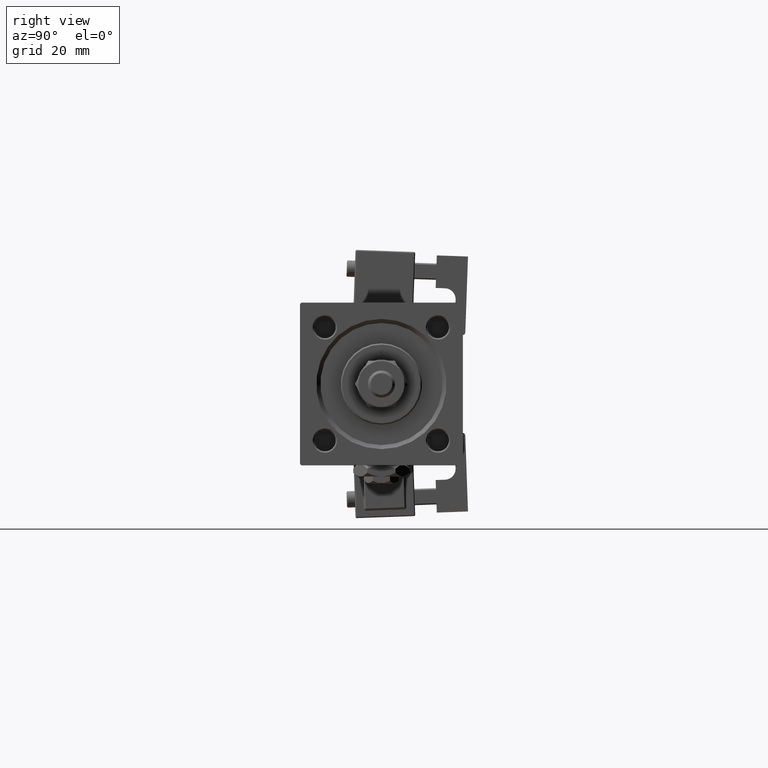
[diagram: clean part render]
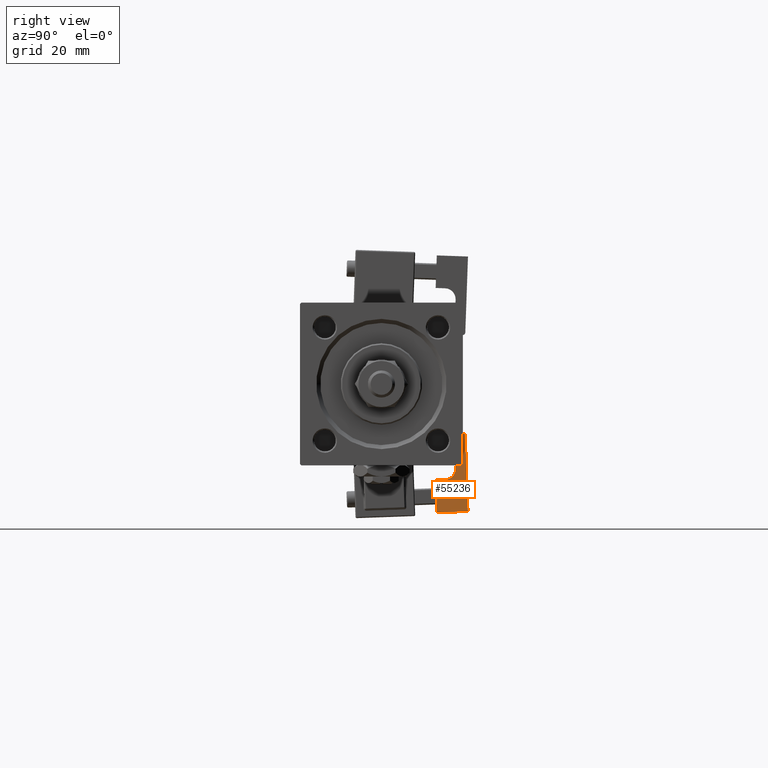
[diagram: same view with one face highlighted and labeled with its STEP entity id]
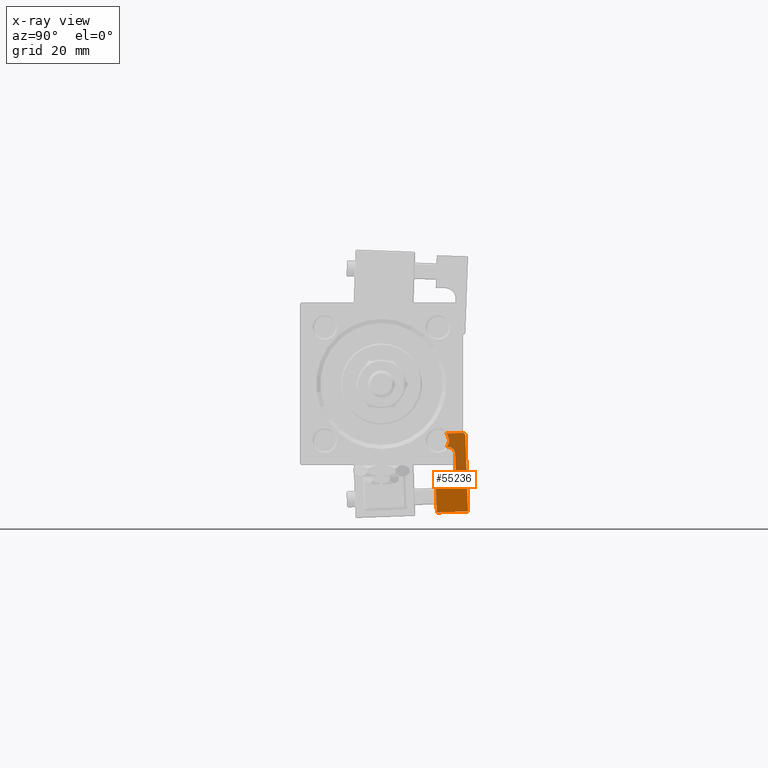
[diagram: x-ray of the same camera — body ghosted, the highlighted face saturated]
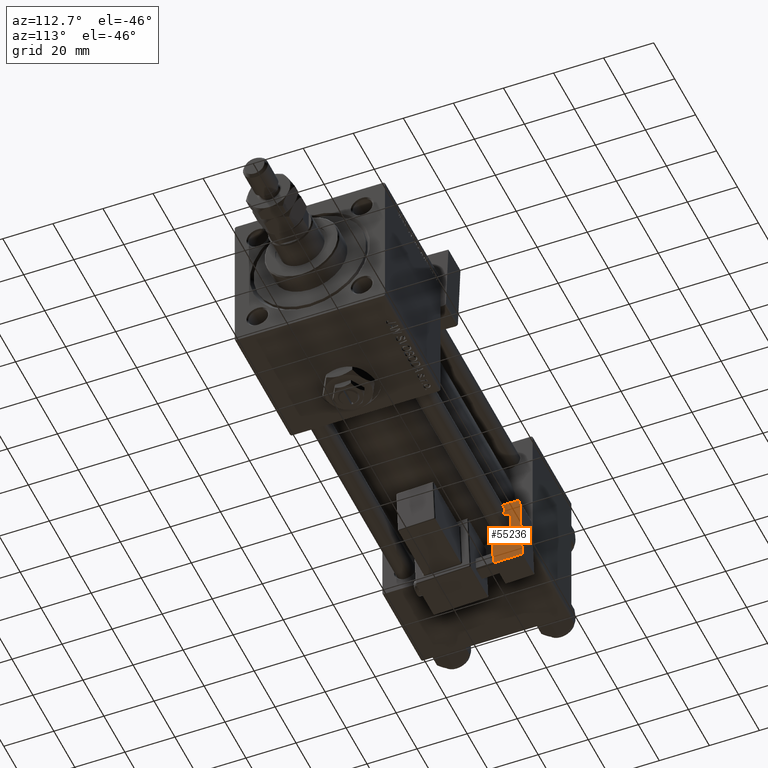
[diagram: same view with one face highlighted and labeled with its STEP entity id]
A machine part, right view. The second image highlights one B-rep face of the part: STEP entity #55236.
The next image is the same camera in x-ray: the body ghosted, the highlighted face saturated — about 22% of this face is hidden behind the body in this view.
A second angle (auxiliary view) of the same face is appended — the face is thin or edge-on in the first view.
In plain terms, the highlighted planar face has unit normal (-1, 0, 0).
Its self-contained STEP definition (entity closure, byte-faithful):
#1076 = EDGE_CURVE ( 'NONE', #6224, #40932, #38210, .T. ) ;
#1113 = ORIENTED_EDGE ( 'NONE', *, *, #31247, .T. ) ;
#1397 = DIRECTION ( 'NONE',  ( -1.000000000000000000, 0.000000000000000000, 0.000000000000000000 ) ) ;
#1871 = ORIENTED_EDGE ( 'NONE', *, *, #45269, .F. ) ;
#2004 = VERTEX_POINT ( 'NONE', #24490 ) ;
#2158 = CARTESIAN_POINT ( 'NONE',  ( 5.750000000000000000, 4.750000000000002665, 29.00000000000000000 ) ) ;
#2245 = CARTESIAN_POINT ( 'NONE',  ( 5.750000000000000000, 5.750000000000001776, 12.00000000000000000 ) ) ;
#2492 = CIRCLE ( 'NONE', #33041, 4.000000000000000000 ) ;
#2689 = CARTESIAN_POINT ( 'NONE',  ( 5.750000000000000000, 5.750000000000001776, 0.000000000000000000 ) ) ;
#4173 = CIRCLE ( 'NONE', #35650, 1.000000000000000888 ) ;
#4631 = DIRECTION ( 'NONE',  ( 0.000000000000000000, -2.602085213965208275E-15, 1.000000000000000000 ) ) ;
#6224 = VERTEX_POINT ( 'NONE', #44213 ) ;
#7683 = ORIENTED_EDGE ( 'NONE', *, *, #54987, .T. ) ;
#8706 = DIRECTION ( 'NONE',  ( 0.000000000000000000, 0.000000000000000000, 1.000000000000000000 ) ) ;
#8924 = VERTEX_POINT ( 'NONE', #12215 ) ;
#9813 = AXIS2_PLACEMENT_3D ( 'NONE', #26977, #27802, #49229 ) ;
#9941 = DIRECTION ( 'NONE',  ( 1.000000000000000000, -0.000000000000000000, -0.000000000000000000 ) ) ;
#10616 = CARTESIAN_POINT ( 'NONE',  ( 5.750000000000000000, -5.750000000000000000, 12.00000000000000000 ) ) ;
#10833 = LINE ( 'NONE', #35656, #27916 ) ;
#11916 = EDGE_LOOP ( 'NONE', ( #23325, #29397, #1113, #48891, #24113, #23767, #53551, #7683, #1871, #34929, #44917 ) ) ;
#12215 = CARTESIAN_POINT ( 'NONE',  ( 5.750000000000000000, -2.250000000000001776, 12.00000000000000000 ) ) ;
#12384 = EDGE_CURVE ( 'NONE', #16716, #36111, #2492, .T. ) ;
#13154 = DIRECTION ( 'NONE',  ( 0.000000000000000000, 0.000000000000000000, 1.000000000000000000 ) ) ;
#15318 = VECTOR ( 'NONE', #39412, 1000.000000000000000 ) ;
#16716 = VERTEX_POINT ( 'NONE', #30881 ) ;
#17217 = CIRCLE ( 'NONE', #30712, 4.000000000000000000 ) ;
#17448 = LINE ( 'NONE', #21671, #15318 ) ;
#19079 = EDGE_CURVE ( 'NONE', #2004, #42389, #34213, .T. ) ;
#19442 = EDGE_CURVE ( 'NONE', #36111, #2004, #10833, .T. ) ;
#21048 = FACE_OUTER_BOUND ( 'NONE', #11916, .T. ) ;
#21671 = CARTESIAN_POINT ( 'NONE',  ( 5.750000000000000000, 1.750000000000000000, 24.00000000000000000 ) ) ;
#22098 = VECTOR ( 'NONE', #41542, 1000.000000000000000 ) ;
#22959 = DIRECTION ( 'NONE',  ( 0.000000000000000000, 1.000000000000000000, 0.000000000000000000 ) ) ;
#23325 = ORIENTED_EDGE ( 'NONE', *, *, #1076, .F. ) ;
#23767 = ORIENTED_EDGE ( 'NONE', *, *, #19079, .T. ) ;
#23782 = CARTESIAN_POINT ( 'NONE',  ( 5.750000000000000000, 5.750000000000000000, 29.00000000000000000 ) ) ;
#24113 = ORIENTED_EDGE ( 'NONE', *, *, #19442, .T. ) ;
#24156 = EDGE_CURVE ( 'NONE', #42389, #54817, #17448, .T. ) ;
#24490 = CARTESIAN_POINT ( 'NONE',  ( 5.750000000000000000, -0.7500000000000007772, 24.00000000000000000 ) ) ;
#24791 = VERTEX_POINT ( 'NONE', #2158 ) ;
#24903 = VECTOR ( 'NONE', #54047, 1000.000000000000000 ) ;
#25850 = VERTEX_POINT ( 'NONE', #36252 ) ;
#26240 = VECTOR ( 'NONE', #27787, 1000.000000000000000 ) ;
#26977 = CARTESIAN_POINT ( 'NONE',  ( 5.750000000000000000, -0.7500000000000007772, 21.50000000000000000 ) ) ;
#27787 = DIRECTION ( 'NONE',  ( -0.000000000000000000, -0.000000000000000000, -1.000000000000000000 ) ) ;
#27802 = DIRECTION ( 'NONE',  ( -1.000000000000000000, 0.000000000000000000, 0.000000000000000000 ) ) ;
#27916 = VECTOR ( 'NONE', #22959, 1000.000000000000000 ) ;
#29397 = ORIENTED_EDGE ( 'NONE', *, *, #44435, .T. ) ;
#29766 = DIRECTION ( 'NONE',  ( -1.000000000000000000, 0.000000000000000000, 0.000000000000000000 ) ) ;
#29912 = CARTESIAN_POINT ( 'NONE',  ( 5.750000000000000000, 5.750000000000001776, 0.000000000000000000 ) ) ;
#30712 = AXIS2_PLACEMENT_3D ( 'NONE', #51524, #47310, #8706 ) ;
#30881 = CARTESIAN_POINT ( 'NONE',  ( 5.750000000000000000, -1.249999999999999334, 29.00000000000000000 ) ) ;
#30920 = EDGE_CURVE ( 'NONE', #25850, #31652, #45820, .T. ) ;
#31247 = EDGE_CURVE ( 'NONE', #24791, #16716, #53916, .T. ) ;
#31652 = VERTEX_POINT ( 'NONE', #32176 ) ;
#32077 = DIRECTION ( 'NONE',  ( 0.000000000000000000, 0.000000000000000000, 1.000000000000000000 ) ) ;
#32176 = CARTESIAN_POINT ( 'NONE',  ( 5.750000000000000000, -5.750000000000000000, 0.000000000000000000 ) ) ;
#33041 = AXIS2_PLACEMENT_3D ( 'NONE', #36861, #1397, #32077 ) ;
#33443 = VECTOR ( 'NONE', #49693, 1000.000000000000000 ) ;
#34213 = CIRCLE ( 'NONE', #9813, 2.499999999999998668 ) ;
#34929 = ORIENTED_EDGE ( 'NONE', *, *, #30920, .T. ) ;
#35650 = AXIS2_PLACEMENT_3D ( 'NONE', #39530, #9941, #4631 ) ;
#35656 = CARTESIAN_POINT ( 'NONE',  ( 5.750000000000000000, -1.249999999999999334, 24.00000000000000000 ) ) ;
#36111 = VERTEX_POINT ( 'NONE', #51812 ) ;
#36252 = CARTESIAN_POINT ( 'NONE',  ( 5.750000000000000000, -5.750000000000000000, 12.00000000000000000 ) ) ;
#36861 = CARTESIAN_POINT ( 'NONE',  ( 5.750000000000000000, -4.372498999199198266, 26.50000000000000355 ) ) ;
#37047 = LINE ( 'NONE', #2689, #22098 ) ;
#38210 = LINE ( 'NONE', #55376, #43504 ) ;
#38981 = CARTESIAN_POINT ( 'NONE',  ( 5.750000000000000000, 1.749999999999999112, 21.50000000000000000 ) ) ;
#39127 = EDGE_CURVE ( 'NONE', #31652, #40932, #37047, .T. ) ;
#39412 = DIRECTION ( 'NONE',  ( 0.000000000000000000, -3.071906155375595568E-16, -1.000000000000000000 ) ) ;
#39530 = CARTESIAN_POINT ( 'NONE',  ( 5.750000000000000000, 4.750000000000001776, 28.00000000000000000 ) ) ;
#40619 = AXIS2_PLACEMENT_3D ( 'NONE', #55402, #29766, #13154 ) ;
#40822 = LINE ( 'NONE', #2245, #24903 ) ;
#40932 = VERTEX_POINT ( 'NONE', #29912 ) ;
#41401 = CARTESIAN_POINT ( 'NONE',  ( 5.750000000000000000, 1.749999999999997558, 16.00000000000000000 ) ) ;
#41542 = DIRECTION ( 'NONE',  ( -0.000000000000000000, 1.000000000000000000, -0.000000000000000000 ) ) ;
#42389 = VERTEX_POINT ( 'NONE', #38981 ) ;
#43504 = VECTOR ( 'NONE', #46658, 1000.000000000000000 ) ;
#44213 = CARTESIAN_POINT ( 'NONE',  ( 5.750000000000000000, 5.750000000000001776, 28.00000000000000000 ) ) ;
#44435 = EDGE_CURVE ( 'NONE', #6224, #24791, #4173, .T. ) ;
#44917 = ORIENTED_EDGE ( 'NONE', *, *, #39127, .T. ) ;
#45269 = EDGE_CURVE ( 'NONE', #25850, #8924, #40822, .T. ) ;
#45820 = LINE ( 'NONE', #10616, #26240 ) ;
#46658 = DIRECTION ( 'NONE',  ( -0.000000000000000000, -0.000000000000000000, -1.000000000000000000 ) ) ;
#47310 = DIRECTION ( 'NONE',  ( -1.000000000000000000, 0.000000000000000000, 0.000000000000000000 ) ) ;
#48891 = ORIENTED_EDGE ( 'NONE', *, *, #12384, .T. ) ;
#49229 = DIRECTION ( 'NONE',  ( 0.000000000000000000, 0.000000000000000000, 1.000000000000000000 ) ) ;
#49693 = DIRECTION ( 'NONE',  ( 0.000000000000000000, -1.000000000000000000, 0.000000000000000000 ) ) ;
#51524 = CARTESIAN_POINT ( 'NONE',  ( 5.750000000000000000, -2.250000000000002665, 16.00000000000000000 ) ) ;
#51812 = CARTESIAN_POINT ( 'NONE',  ( 5.750000000000000000, -1.249999999999999334, 24.00000000000000000 ) ) ;
#52010 = PLANE ( 'NONE',  #40619 ) ;
#53551 = ORIENTED_EDGE ( 'NONE', *, *, #24156, .T. ) ;
#53916 = LINE ( 'NONE', #23782, #33443 ) ;
#54047 = DIRECTION ( 'NONE',  ( -0.000000000000000000, 1.000000000000000000, -0.000000000000000000 ) ) ;
#54817 = VERTEX_POINT ( 'NONE', #41401 ) ;
#54987 = EDGE_CURVE ( 'NONE', #54817, #8924, #17217, .T. ) ;
#55236 = ADVANCED_FACE ( 'NONE', ( #21048 ), #52010, .F. ) ;
#55376 = CARTESIAN_POINT ( 'NONE',  ( 5.750000000000000000, 5.750000000000001776, 12.00000000000000000 ) ) ;
#55402 = CARTESIAN_POINT ( 'NONE',  ( 5.750000000000000000, 5.750000000000001776, 12.00000000000000000 ) ) ;